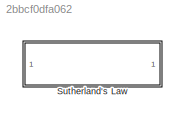
MODEL slx_2bbcf0dfa062
KIND library
CONFIG AbsTol = auto
CONFIG FixedStep = auto
CONFIG MaxStep = auto
CONFIG MinStep = auto
CONFIG RelTol = 1e-3
CONFIG SampleTimeConstraint = Unconstrained
CONFIG Solver = ode45
CONFIG SolverMode = Auto
CONFIG SolverName = ode45
CONFIG StartTime = 0.0
CONFIG StopTime = 10.0
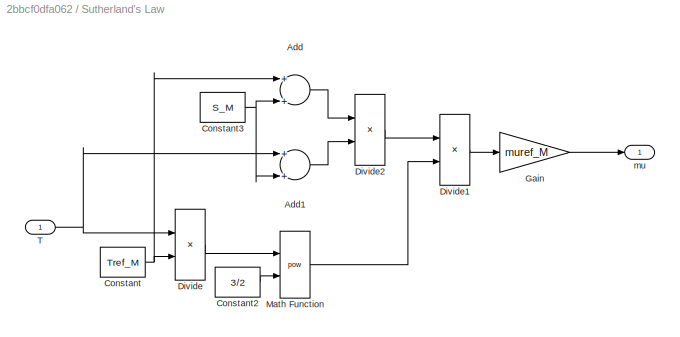
BLOCK [SubSystem] Sutherland's Law
  Ports = [1, 1]
  RequestExecContextInheritance = off
BLOCK [Sum] Sutherland's Law/Add
  InputSameDT = off
  OutDataTypeStr = Inherit: Inherit via internal rule
  Ports = [2, 1]
  SaturateOnIntegerOverflow = off
BLOCK [Sum] Sutherland's Law/Add1
  InputSameDT = off
  OutDataTypeStr = Inherit: Inherit via internal rule
  Ports = [2, 1]
  SaturateOnIntegerOverflow = off
BLOCK [Constant] Sutherland's Law/Constant
  Value = Tref_M
BLOCK [Constant] Sutherland's Law/Constant2
  Value = 3/2
BLOCK [Constant] Sutherland's Law/Constant3
  Value = S_M
BLOCK [Product] Sutherland's Law/Divide
  InputSameDT = off
  Inputs = */
  OutDataTypeStr = Inherit: Inherit via internal rule
  Ports = [2, 1]
  RndMeth = Floor
  SaturateOnIntegerOverflow = off
BLOCK [Product] Sutherland's Law/Divide1
  InputSameDT = off
  Inputs = **
  OutDataTypeStr = Inherit: Inherit via internal rule
  Ports = [2, 1]
  RndMeth = Floor
  SaturateOnIntegerOverflow = off
BLOCK [Product] Sutherland's Law/Divide2
  InputSameDT = off
  Inputs = */
  OutDataTypeStr = Inherit: Inherit via internal rule
  Ports = [2, 1]
  RndMeth = Floor
  SaturateOnIntegerOverflow = off
BLOCK [Gain] Sutherland's Law/Gain
  Gain = muref_M
  OutDataTypeStr = Inherit: Inherit via internal rule
  ParamDataTypeStr = Inherit: Inherit via internal rule
  SaturateOnIntegerOverflow = off
BLOCK [Math] Sutherland's Law/Math Function
  Operator = pow
  Ports = [2, 1]
BLOCK [Inport] Sutherland's Law/T
  IconDisplay = Port number
BLOCK [Outport] Sutherland's Law/mu
  IconDisplay = Port number
LINE Sutherland's Law/Add1:1 -> Sutherland's Law/Divide2:2
LINE Sutherland's Law/Add:1 -> Sutherland's Law/Divide2:1
LINE Sutherland's Law/Constant2:1 -> Sutherland's Law/Math Function:2
NET Sutherland's Law/Constant3:1 -> Sutherland's Law/Add1:2, Sutherland's Law/Add:2
NET Sutherland's Law/Constant:1 -> Sutherland's Law/Add:1, Sutherland's Law/Divide:2
LINE Sutherland's Law/Divide1:1 -> Sutherland's Law/Gain:1
LINE Sutherland's Law/Divide2:1 -> Sutherland's Law/Divide1:1
LINE Sutherland's Law/Divide:1 -> Sutherland's Law/Math Function:1
LINE Sutherland's Law/Gain:1 -> Sutherland's Law/mu:1
LINE Sutherland's Law/Math Function:1 -> Sutherland's Law/Divide1:2
NET Sutherland's Law/T:1 -> Sutherland's Law/Add1:1, Sutherland's Law/Divide:1
note: NET lines group one-source signal fan-out (src -> all destinations, sorted); 1:1 wires keep LINE
